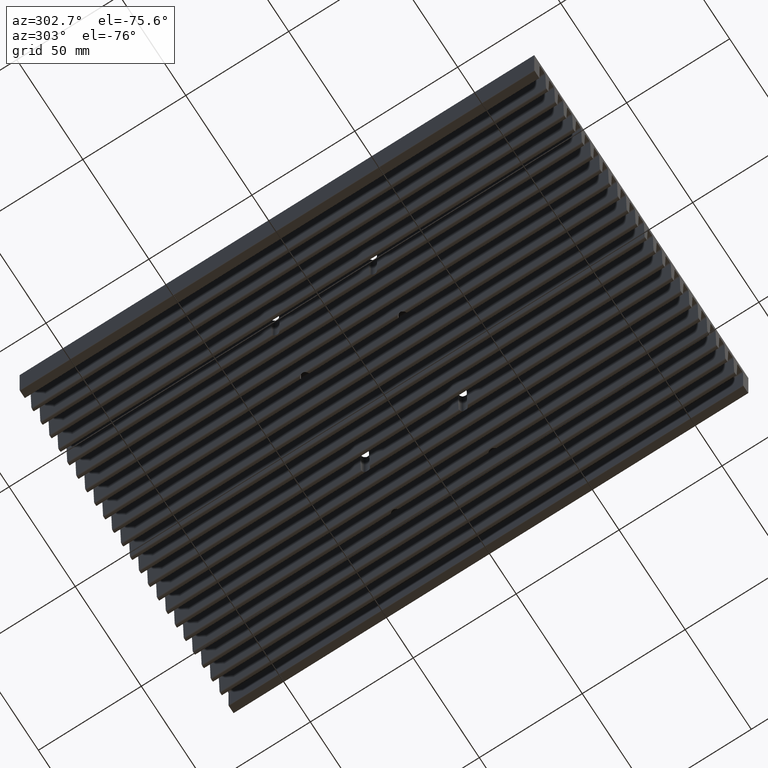
[diagram: clean part render]
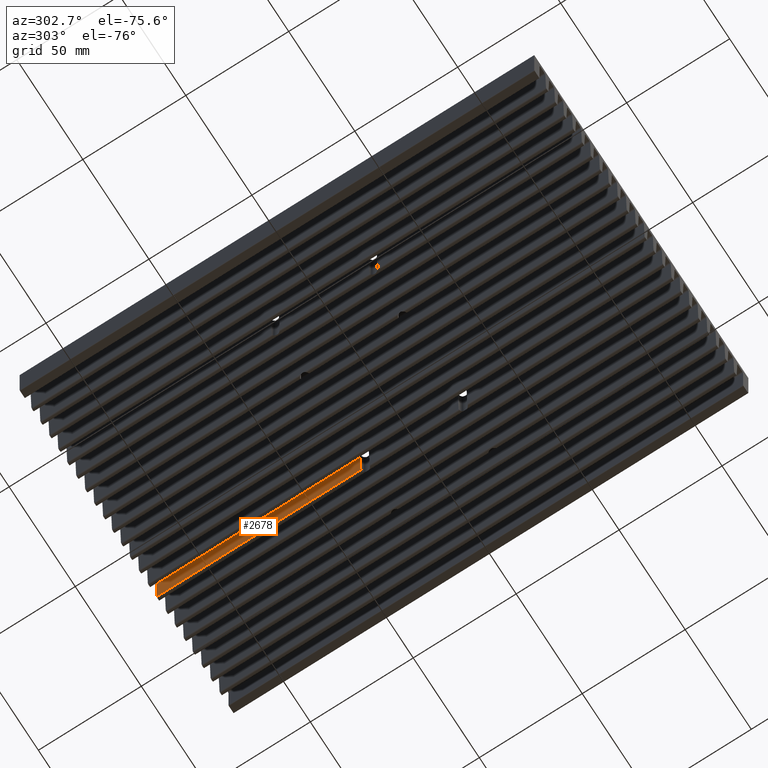
[diagram: same view with one face highlighted and labeled with its STEP entity id]
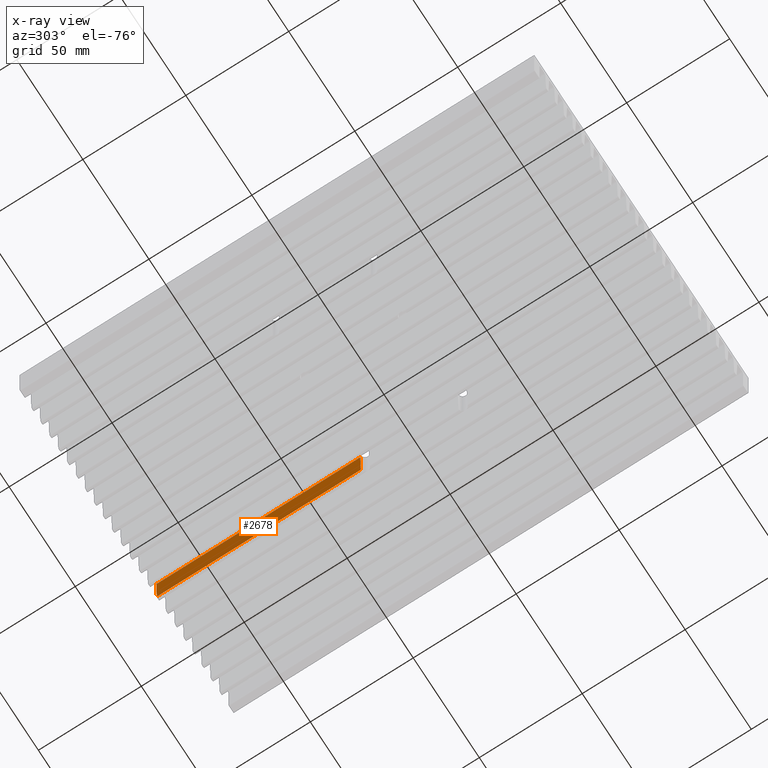
[diagram: x-ray of the same camera — body ghosted, the highlighted face saturated]
A machine part, auxiliary view. The second image highlights one B-rep face of the part: STEP entity #2678.
The next image is the same camera in x-ray: the body ghosted, the highlighted face saturated — about 0% of this face is hidden behind the body in this view.
In plain terms, the highlighted planar face has unit normal (-0.9997, 0, -0.0252).
Its self-contained STEP definition (entity closure, byte-faithful):
#1257=CARTESIAN_POINT('',(22.303953138820958,25.840828933394469,-5.175451448333909));
#1258=VERTEX_POINT('',#1257);
#1276=CARTESIAN_POINT('',(22.78028629304859,25.831211088382279,-24.073321124083144));
#1277=VERTEX_POINT('',#1276);
#1278=CARTESIAN_POINT('',(22.499999999979991,23.750000000117126,-12.953343874340881));
#1279=DIRECTION('',(0.999682488800849,-5.550242E-018,0.025197650385308));
#1280=DIRECTION('',(-0.025197650385308,2.219741E-016,0.999682488800849));
#1281=AXIS2_PLACEMENT_3D('',#1278,#1279,#1280);
#1282=ELLIPSE('',#1281,83.341103947710309,2.099999999999994);
#1283=EDGE_CURVE('',#1277,#1258,#1282,.T.);
#2613=CARTESIAN_POINT('',(22.303953138820958,125.0,-5.175451448333888));
#2614=VERTEX_POINT('',#2613);
#2622=CARTESIAN_POINT('',(22.303953138820958,125.0,-5.175451448333888));
#2623=DIRECTION('',(0.0,-1.0,0.0));
#2624=VECTOR('',#2623,99.159171066605523);
#2625=LINE('',#2622,#2624);
#2626=EDGE_CURVE('',#2614,#1258,#2625,.T.);
#2655=CARTESIAN_POINT('',(22.78028629304859,125.0,-24.073321124083122));
#2656=DIRECTION('',(-0.999682488800849,5.550242E-018,-0.025197650385308));
#2657=DIRECTION('',(-0.025197650385308,0.0,0.999682488800849));
#2658=AXIS2_PLACEMENT_3D('',#2655,#2656,#2657);
#2659=PLANE('',#2658);
#2660=ORIENTED_EDGE('',*,*,#1283,.T.);
#2661=ORIENTED_EDGE('',*,*,#2626,.F.);
#2662=CARTESIAN_POINT('',(22.78028629304859,125.0,-24.073321124083122));
#2663=VERTEX_POINT('',#2662);
#2664=CARTESIAN_POINT('',(22.78028629304859,125.0,-24.073321124083122));
#2665=DIRECTION('',(-0.025197650385308,0.0,0.999682488800849));
#2666=VECTOR('',#2665,18.903871866774253);
#2667=LINE('',#2664,#2666);
#2668=EDGE_CURVE('',#2663,#2614,#2667,.T.);
#2669=ORIENTED_EDGE('',*,*,#2668,.F.);
#2670=CARTESIAN_POINT('',(22.78028629304859,125.0,-24.073321124083122));
#2671=DIRECTION('',(0.0,-1.0,0.0));
#2672=VECTOR('',#2671,99.168788911617725);
#2673=LINE('',#2670,#2672);
#2674=EDGE_CURVE('',#2663,#1277,#2673,.T.);
#2675=ORIENTED_EDGE('',*,*,#2674,.T.);
#2676=EDGE_LOOP('',(#2660,#2661,#2669,#2675));
#2677=FACE_OUTER_BOUND('',#2676,.T.);
#2678=ADVANCED_FACE('',(#2677),#2659,.T.);